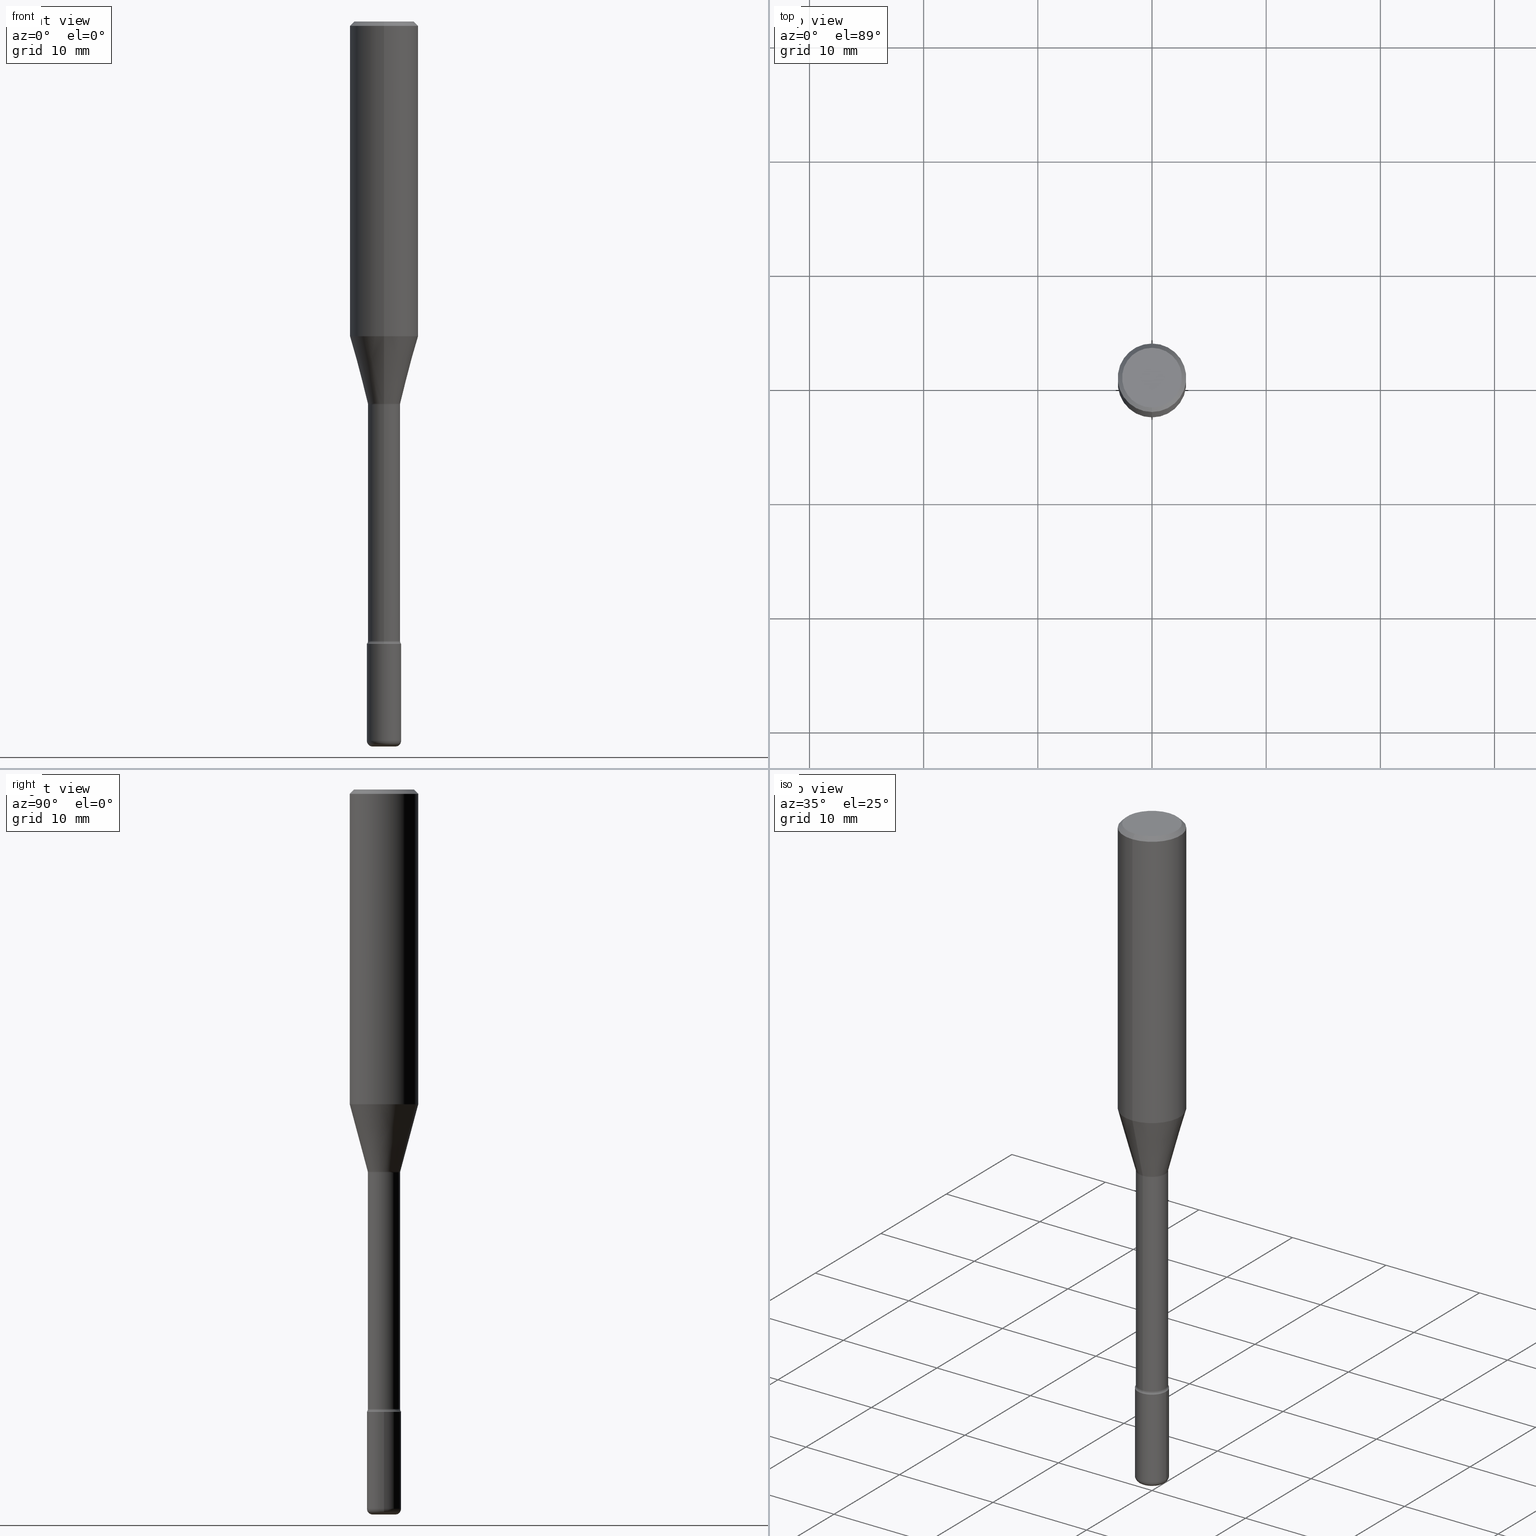
[diagram: canonical four-view strip — front | top / right | iso, engineering-drawing reading convention]
A machine part, canonical four-view strip (front | top / right | iso — engineering-drawing reading convention). The complete STEP part file that produces these views, byte-faithful:
ISO-10303-21;
HEADER;
FILE_DESCRIPTION (( 'STEP AP203' ),
    '1' );
FILE_NAME ('05369.STEP',
    '2024-03-06T20:02:15',
    ( '' ),
    ( '' ),
    'SwSTEP 2.0',
    'SolidWorks 2023',
    '' );
FILE_SCHEMA (( 'CONFIG_CONTROL_DESIGN' ));
ENDSEC;

DATA;
#1 = CIRCLE ( 'NONE', #28, 0.1180999999999999966 ) ;
#2 = PERSON_AND_ORGANIZATION_ROLE ( 'design_supplier' ) ;
#3 = CARTESIAN_POINT ( 'NONE',  ( -8.246878922347479668E-16, -0.1180999999999999966, 8.904434295473012272E-16 ) ) ;
#4 = EDGE_CURVE ( 'NONE', #140, #515, #500, .T. ) ;
#5 = AXIS2_PLACEMENT_3D ( 'NONE', #61, #27, #238 ) ;
#6 = CIRCLE ( 'NONE', #323, 0.1031000000000000111 ) ;
#7 = CARTESIAN_POINT ( 'NONE',  ( -4.123439461173217214E-16, -0.05905000000000752008, -2.145699999999999719 ) ) ;
#8 = ORIENTED_EDGE ( 'NONE', *, *, #509, .F. ) ;
#9 = LINE ( 'NONE', #181, #226 ) ;
#10 = DIRECTION ( 'NONE',  ( 6.982962677686265922E-15, 1.000000000000000000, -3.487819265831411744E-15 ) ) ;
#11 = LOCAL_TIME ( 15, 2, 15.00000000000000000, #160 ) ;
#12 = CIRCLE ( 'NONE', #356, 0.05550000000000008399 ) ;
#13 = DIRECTION ( 'NONE',  ( -2.445314574720221452E-29, 3.491702207079214016E-15, 1.000000000000000000 ) ) ;
#14 = FACE_OUTER_BOUND ( 'NONE', #179, .T. ) ;
#15 = EDGE_CURVE ( 'NONE', #474, #440, #239, .T. ) ;
#16 = FACE_OUTER_BOUND ( 'NONE', #50, .T. ) ;
#17 = ORIENTED_EDGE ( 'NONE', *, *, #286, .T. ) ;
#18 = AXIS2_PLACEMENT_3D ( 'NONE', #410, #502, #237 ) ;
#19 = TOROIDAL_SURFACE ( 'NONE', #501, 0.07050000000000000711, 0.01500000000000001853 ) ;
#20 = CARTESIAN_POINT ( 'NONE',  ( 5.247242417431447608E-29, -7.491671508755737816E-15, -2.145700000000000163 ) ) ;
#21 = EDGE_CURVE ( 'NONE', #136, #329, #30, .T. ) ;
#22 = DIRECTION ( 'NONE',  ( -2.445314574720221172E-29, 3.491702207079214016E-15, 1.000000000000000000 ) ) ;
#23 = DIRECTION ( 'NONE',  ( -6.982962677686265922E-15, -1.000000000000000000, 3.491702207079214016E-15 ) ) ;
#24 = ORIENTED_EDGE ( 'NONE', *, *, #406, .T. ) ;
#25 = DIRECTION ( 'NONE',  ( -2.445314574720221452E-29, 3.491702207079214016E-15, 1.000000000000000000 ) ) ;
#26 = EDGE_CURVE ( 'NONE', #561, #329, #260, .T. ) ;
#27 = DIRECTION ( 'NONE',  ( 7.105427357601001859E-15, 1.000000000000000000, -3.491481338843145583E-15 ) ) ;
#28 = AXIS2_PLACEMENT_3D ( 'NONE', #200, #553, #417 ) ;
#29 = CARTESIAN_POINT ( 'NONE',  ( -1.169113584055446105E-44, 1.669184350826100908E-30, 4.780733988912460139E-16 ) ) ;
#30 = LINE ( 'NONE', #411, #276 ) ;
#31 = CONICAL_SURFACE ( 'NONE', #176, 0.05601111260566399297, 0.2617993877991499629 ) ;
#32 = MECHANICAL_CONTEXT ( 'NONE', #298, 'mechanical' ) ;
#33 = ORIENTED_EDGE ( 'NONE', *, *, #91, .F. ) ;
#34 = APPROVAL_ROLE ( '' ) ;
#35 = CARTESIAN_POINT ( 'NONE',  ( 3.220460959417665931E-29, -4.598545625197397204E-15, -1.316992501787273007 ) ) ;
#36 = ORIENTED_EDGE ( 'NONE', *, *, #495, .F. ) ;
#37 = APPROVAL_ROLE ( '' ) ;
#38 = CARTESIAN_POINT ( 'NONE',  ( 7.723156721521011834E-16, 0.1031000000000000111, -3.887509258146911569E-16 ) ) ;
#39 = CARTESIAN_POINT ( 'NONE',  ( 0.05905000000000008159, -9.072265110850027889E-15, -2.480300000000000171 ) ) ;
#40 = DIRECTION ( 'NONE',  ( 0.000000000000000000, 0.000000000000000000, 1.000000000000000000 ) ) ;
#41 = PLANE ( 'NONE',  #404 ) ;
#42 = CC_DESIGN_DATE_AND_TIME_ASSIGNMENT ( #384, #296, ( #246 ) ) ;
#43 = APPROVAL_PERSON_ORGANIZATION ( #347, #452, #301 ) ;
#44 = CARTESIAN_POINT ( 'NONE',  ( 3.943512183469081661E-16, 0.05549999999999540023, -1.320874787463811373 ) ) ;
#45 = ORIENTED_EDGE ( 'NONE', *, *, #509, .T. ) ;
#46 = ORIENTED_EDGE ( 'NONE', *, *, #393, .F. ) ;
#47 = VECTOR ( 'NONE', #311, 39.37007874015748854 ) ;
#48 = CONICAL_SURFACE ( 'NONE', #270, 0.1180999999999999966, 0.7853981633974480570 ) ;
#49 = CARTESIAN_POINT ( 'NONE',  ( 5.009326287109235352E-16, 0.07049999999999263800, -2.136009927760847305 ) ) ;
#50 = EDGE_LOOP ( 'NONE', ( #294, #17, #305, #313 ) ) ;
#51 = FACE_OUTER_BOUND ( 'NONE', #100, .T. ) ;
#52 = ORIENTED_EDGE ( 'NONE', *, *, #406, .F. ) ;
#53 = CARTESIAN_POINT ( 'NONE',  ( -3.875544286115880904E-16, -0.05550000000000004929, 6.718628713841425539E-16 ) ) ;
#54 = CLOSED_SHELL ( 'NONE', ( #512, #279, #178, #327, #56, #353 ) ) ;
#55 = CARTESIAN_POINT ( 'NONE',  ( -7.587710785535310407E-16, -0.1031000000000000111, 3.312380692850428747E-16 ) ) ;
#56 = ADVANCED_FACE ( 'NONE', ( #466 ), #233, .T. ) ;
#57 = ORIENTED_EDGE ( 'NONE', *, *, #91, .T. ) ;
#58 = DIRECTION ( 'NONE',  ( -1.807323732225328167E-15, -0.2588190451025179084, 0.9659258262890690894 ) ) ;
#59 = DESIGN_CONTEXT ( 'detailed design', #236, 'design' ) ;
#60 = FACE_OUTER_BOUND ( 'NONE', #198, .T. ) ;
#61 = CARTESIAN_POINT ( 'NONE',  ( -0.03935000000000000303, -8.380322598211055940E-15, -2.480300000000000171 ) ) ;
#62 = EDGE_CURVE ( 'NONE', #515, #140, #508, .T. ) ;
#63 = APPROVAL_PERSON_ORGANIZATION ( #388, #210, #34 ) ;
#64 = CARTESIAN_POINT ( 'NONE',  ( 3.230158089619171428E-29, -4.611809671378302064E-15, -1.320874787463810929 ) ) ;
#65 = AXIS2_PLACEMENT_3D ( 'NONE', #511, #168, #302 ) ;
#66 = CYLINDRICAL_SURFACE ( 'NONE', #567, 0.05550000000000004929 ) ;
#67 = EDGE_LOOP ( 'NONE', ( #8, #57, #441, #513 ) ) ;
#68 = ADVANCED_FACE ( 'NONE', ( #326 ), #446, .F. ) ;
#69 = DIRECTION ( 'NONE',  ( -6.982962677686265922E-15, -1.000000000000000000, 4.626330217890369336E-15 ) ) ;
#70 = VERTEX_POINT ( 'NONE', #288 ) ;
#71 = ORIENTED_EDGE ( 'NONE', *, *, #272, .F. ) ;
#72 = DIRECTION ( 'NONE',  ( -2.445314574720221452E-29, 3.491702207079214016E-15, 1.000000000000000000 ) ) ;
#73 = ORIENTED_EDGE ( 'NONE', *, *, #497, .F. ) ;
#74 = CARTESIAN_POINT ( 'NONE',  ( 6.113672015462842613E-29, -8.728703347107866520E-15, -2.500000000000000444 ) ) ;
#75 = DIRECTION ( 'NONE',  ( -2.445468806185136877E-29, 3.491481338843145188E-15, 1.000000000000000000 ) ) ;
#76 = EDGE_CURVE ( 'NONE', #440, #561, #554, .T. ) ;
#77 = CIRCLE ( 'NONE', #380, 0.1180999999999999966 ) ;
#78 = VECTOR ( 'NONE', #144, 39.37007874015748143 ) ;
#79 = COORDINATED_UNIVERSAL_TIME_OFFSET ( 5, 0, .BEHIND. ) ;
#80 = ORIENTED_EDGE ( 'NONE', *, *, #188, .F. ) ;
#81 = FACE_OUTER_BOUND ( 'NONE', #328, .T. ) ;
#82 = APPROVAL ( #431, 'UNSPECIFIED' ) ;
#83 = DATE_AND_TIME ( #438, #142 ) ;
#84 = LINE ( 'NONE', #180, #478 ) ;
#85 = VERTEX_POINT ( 'NONE', #285 ) ;
#86 = ADVANCED_FACE ( 'NONE', ( #461 ), #66, .T. ) ;
#87 = EDGE_LOOP ( 'NONE', ( #422, #415, #202, #218 ) ) ;
#88 = PERSON_AND_ORGANIZATION_ROLE ( 'creator' ) ;
#89 = CARTESIAN_POINT ( 'NONE',  ( 8.246878922347483612E-16, 0.1180999999999999411, -0.01500000000000044006 ) ) ;
#90 = AXIS2_PLACEMENT_3D ( 'NONE', #297, #129, #126 ) ;
#91 = EDGE_CURVE ( 'NONE', #266, #398, #77, .T. ) ;
#92 = DIRECTION ( 'NONE',  ( -2.445314574720221452E-29, 3.491702207079214016E-15, 1.000000000000000000 ) ) ;
#93 = ORIENTED_EDGE ( 'NONE', *, *, #444, .T. ) ;
#94 = CARTESIAN_POINT ( 'NONE',  ( 5.246911482977179404E-29, -7.492145425729869203E-15, -2.145700000000000163 ) ) ;
#95 = ORIENTED_EDGE ( 'NONE', *, *, #4, .F. ) ;
#96 = AXIS2_PLACEMENT_3D ( 'NONE', #249, #472, #69 ) ;
#97 = DIRECTION ( 'NONE',  ( 1.000000000000000000, -6.982962677686266711E-15, 4.876176775795936353E-29 ) ) ;
#98 = EDGE_CURVE ( 'NONE', #187, #528, #454, .T. ) ;
#99 = CARTESIAN_POINT ( 'NONE',  ( 2.747795813670157578E-16, 0.03934999999999127390, -2.500000000000000000 ) ) ;
#100 = EDGE_LOOP ( 'NONE', ( #565, #145 ) ) ;
#101 = DIRECTION ( 'NONE',  ( -6.982962677686265922E-15, -1.000000000000000000, 3.491702207079214016E-15 ) ) ;
#102 = DIRECTION ( 'NONE',  ( -2.445468806185136597E-29, 3.491481338843145583E-15, 1.000000000000000000 ) ) ;
#103 = CIRCLE ( 'NONE', #191, 0.05601111260566399297 ) ;
#104 = VECTOR ( 'NONE', #212, 39.37007874015748143 ) ;
#105 = CC_DESIGN_PERSON_AND_ORGANIZATION_ASSIGNMENT ( #219, #564, ( #460 ) ) ;
#106 = AXIS2_PLACEMENT_3D ( 'NONE', #99, #314, #360 ) ;
#107 = DIRECTION ( 'NONE',  ( -2.445314574720221452E-29, 3.491702207079214016E-15, 1.000000000000000000 ) ) ;
#108 = ORIENTED_EDGE ( 'NONE', *, *, #497, .T. ) ;
#109 = DIRECTION ( 'NONE',  ( -2.445314574720221452E-29, 3.491702207079214016E-15, 1.000000000000000000 ) ) ;
#110 = ORIENTED_EDGE ( 'NONE', *, *, #289, .T. ) ;
#111 = CARTESIAN_POINT ( 'NONE',  ( -0.05904999999999999832, -7.656220851277857871E-15, -2.145700000000000163 ) ) ;
#112 = CARTESIAN_POINT ( 'NONE',  ( -0.05904999999999999832, 4.195754854663391478E-16, -2.904631170795521892E-30 ) ) ;
#113 = DIRECTION ( 'NONE',  ( -6.982962677686265922E-15, -1.000000000000000000, 3.491702207079214411E-15 ) ) ;
#114 = AXIS2_PLACEMENT_3D ( 'NONE', #251, #552, #337 ) ;
#115 = ORIENTED_EDGE ( 'NONE', *, *, #146, .F. ) ;
#116 = ORIENTED_EDGE ( 'NONE', *, *, #194, .T. ) ;
#117 =( CONVERSION_BASED_UNIT ( 'INCH', #334 ) LENGTH_UNIT ( ) NAMED_UNIT ( #261 ) );
#118 = ORIENTED_EDGE ( 'NONE', *, *, #473, .F. ) ;
#119 = CARTESIAN_POINT ( 'NONE',  ( 5.223545648040918700E-29, -7.457838802360693012E-15, -2.136009927760847305 ) ) ;
#120 = VECTOR ( 'NONE', #151, 39.37007874015748143 ) ;
#121 = PERSON_AND_ORGANIZATION_ROLE ( 'design_owner' ) ;
#122 = DIRECTION ( 'NONE',  ( -6.982962677686265922E-15, -1.000000000000000000, 4.877332133888037765E-15 ) ) ;
#123 = AXIS2_PLACEMENT_3D ( 'NONE', #481, #524, #220 ) ;
#124 = AXIS2_PLACEMENT_3D ( 'NONE', #49, #496, #147 ) ;
#125 = ORIENTED_EDGE ( 'NONE', *, *, #130, .F. ) ;
#126 = DIRECTION ( 'NONE',  ( 6.982962677686265922E-15, 1.000000000000000000, -3.491702207079214016E-15 ) ) ;
#127 = ORIENTED_EDGE ( 'NONE', *, *, #538, .F. ) ;
#128 = ORIENTED_EDGE ( 'NONE', *, *, #393, .T. ) ;
#129 = DIRECTION ( 'NONE',  ( 2.445314574720221172E-29, -3.491702207079214016E-15, -1.000000000000000000 ) ) ;
#130 = EDGE_CURVE ( 'NONE', #528, #187, #12, .T. ) ;
#131 = CIRCLE ( 'NONE', #96, 0.05904999999999999832 ) ;
#132 = EDGE_LOOP ( 'NONE', ( #115, #93, #532, #80 ) ) ;
#133 = SHAPE_DEFINITION_REPRESENTATION ( #401, #545 ) ;
#134 = DIRECTION ( 'NONE',  ( -2.445468806185136597E-29, 3.491481338843145583E-15, 1.000000000000000000 ) ) ;
#135 = AXIS2_PLACEMENT_3D ( 'NONE', #201, #335, #205 ) ;
#136 = VERTEX_POINT ( 'NONE', #39 ) ;
#137 = APPROVAL_STATUS ( 'not_yet_approved' ) ;
#138 = LINE ( 'NONE', #3, #104 ) ;
#139 = CARTESIAN_POINT ( 'NONE',  ( -4.922988687768301840E-16, -0.07050000000000755662, -2.136009927760846860 ) ) ;
#140 = VERTEX_POINT ( 'NONE', #44 ) ;
#141 = CARTESIAN_POINT ( 'NONE',  ( 3.667971862080338817E-31, -5.237553310618831452E-17, -0.01500000000000002720 ) ) ;
#142 = LOCAL_TIME ( 15, 2, 15.00000000000000000, #482 ) ;
#143 = CIRCLE ( 'NONE', #520, 0.01970000000000016877 ) ;
#144 = DIRECTION ( 'NONE',  ( -2.445314574720221172E-29, 3.491702207079214016E-15, 1.000000000000000000 ) ) ;
#145 = ORIENTED_EDGE ( 'NONE', *, *, #289, .F. ) ;
#146 = EDGE_CURVE ( 'NONE', #243, #373, #333, .T. ) ;
#147 = DIRECTION ( 'NONE',  ( 7.105427357601001859E-15, 1.000000000000000000, 0.000000000000000000 ) ) ;
#148 = CC_DESIGN_PERSON_AND_ORGANIZATION_ASSIGNMENT ( #262, #121, ( #533 ) ) ;
#149 = DIRECTION ( 'NONE',  ( -6.982962677686265922E-15, -1.000000000000000000, 3.491702207079214016E-15 ) ) ;
#150 = VECTOR ( 'NONE', #166, 39.37007874015748143 ) ;
#151 = DIRECTION ( 'NONE',  ( -2.445314574720221172E-29, 3.491702207079214016E-15, 1.000000000000000000 ) ) ;
#152 = DIRECTION ( 'NONE',  ( 1.000000000000000000, -7.105427357601001070E-15, 4.926318213397865757E-29 ) ) ;
#153 = ORIENTED_EDGE ( 'NONE', *, *, #231, .T. ) ;
#154 = CARTESIAN_POINT ( 'NONE',  ( 2.653835399191132044E-29, -3.789452292305104081E-15, -1.085273619446188720 ) ) ;
#155 = EDGE_LOOP ( 'NONE', ( #24, #556, #416, #541 ) ) ;
#156 = DIRECTION ( 'NONE',  ( -6.982962677686265922E-15, -1.000000000000000000, 3.469747663417777397E-15 ) ) ;
#157 = DIRECTION ( 'NONE',  ( -6.982962677686265922E-15, -1.000000000000000000, 3.469747663417777397E-15 ) ) ;
#158 = FACE_OUTER_BOUND ( 'NONE', #342, .T. ) ;
#159 = DIRECTION ( 'NONE',  ( -2.445468806185136597E-29, 3.491481338843145583E-15, 1.000000000000000000 ) ) ;
#160 = COORDINATED_UNIVERSAL_TIME_OFFSET ( 5, 0, .BEHIND. ) ;
#161 = ORIENTED_EDGE ( 'NONE', *, *, #229, .T. ) ;
#162 = AXIS2_PLACEMENT_3D ( 'NONE', #64, #371, #113 ) ;
#163 = ORIENTED_EDGE ( 'NONE', *, *, #98, .T. ) ;
#164 = AXIS2_PLACEMENT_3D ( 'NONE', #190, #107, #101 ) ;
#165 = APPROVAL_DATE_TIME ( #485, #452 ) ;
#166 = DIRECTION ( 'NONE',  ( 4.937700262164546464E-15, 0.7071067811865449082, -0.7071067811865501263 ) ) ;
#167 = PERSON_AND_ORGANIZATION_ROLE ( 'classification_officer' ) ;
#168 = DIRECTION ( 'NONE',  ( -2.445314574720221452E-29, 3.491702207079214016E-15, 1.000000000000000000 ) ) ;
#169 = ADVANCED_FACE ( 'NONE', ( #488 ), #306, .F. ) ;
#170 = APPROVAL_STATUS ( 'not_yet_approved' ) ;
#171 = DIRECTION ( 'NONE',  ( 1.000000000000000000, -6.982962677686273021E-15, 0.000000000000000000 ) ) ;
#172 = CIRCLE ( 'NONE', #396, 0.03935000000000000303 ) ;
#173 = APPLICATION_PROTOCOL_DEFINITION ( 'international standard', 'config_control_design', 1994, #236 ) ;
#174 = CC_DESIGN_APPROVAL ( #82, ( #213 ) ) ;
#175 = DIRECTION ( 'NONE',  ( -6.982962677686265922E-15, -1.000000000000000000, 4.877332133888037765E-15 ) ) ;
#176 = AXIS2_PLACEMENT_3D ( 'NONE', #386, #483, #175 ) ;
#177 = AXIS2_PLACEMENT_3D ( 'NONE', #183, #102, #363 ) ;
#178 = ADVANCED_FACE ( 'NONE', ( #263 ), #41, .T. ) ;
#179 = EDGE_LOOP ( 'NONE', ( #535, #36, #350, #383 ) ) ;
#180 = CARTESIAN_POINT ( 'NONE',  ( 3.943512183468558548E-16, 0.05550000000000004929, 2.842839263983495232E-16 ) ) ;
#181 = CARTESIAN_POINT ( 'NONE',  ( -8.102248135368174406E-16, -0.1181000000000000522, -0.01499999999999961607 ) ) ;
#182 = EDGE_LOOP ( 'NONE', ( #368, #209, #390, #293 ) ) ;
#183 = CARTESIAN_POINT ( 'NONE',  ( 6.065496279980994755E-29, -8.659921164732655335E-15, -2.480300000000000171 ) ) ;
#184 = EDGE_CURVE ( 'NONE', #398, #85, #138, .T. ) ;
#185 = AXIS2_PLACEMENT_3D ( 'NONE', #20, #159, #372 ) ;
#186 = DIRECTION ( 'NONE',  ( 2.445314574720221452E-29, -3.491702207079214016E-15, -1.000000000000000000 ) ) ;
#187 = VERTEX_POINT ( 'NONE', #259 ) ;
#188 = EDGE_CURVE ( 'NONE', #373, #515, #529, .T. ) ;
#189 = ORIENTED_EDGE ( 'NONE', *, *, #473, .T. ) ;
#190 = CARTESIAN_POINT ( 'NONE',  ( -1.169113584055446105E-44, 1.669184350826100908E-30, 4.780733988912460139E-16 ) ) ;
#191 = AXIS2_PLACEMENT_3D ( 'NONE', #377, #25, #548 ) ;
#192 = DIRECTION ( 'NONE',  ( 7.105427357601001859E-15, 1.000000000000000000, 0.000000000000000000 ) ) ;
#193 = LOCAL_TIME ( 15, 2, 15.00000000000000000, #517 ) ;
#194 = EDGE_CURVE ( 'NONE', #329, #561, #423, .T. ) ;
#195 = CONICAL_SURFACE ( 'NONE', #550, 0.1180999999999999966, 0.7853981633974480570 ) ;
#196 = DIRECTION ( 'NONE',  ( -2.445314574720221452E-29, 3.491702207079214016E-15, 1.000000000000000000 ) ) ;
#197 = ORIENTED_EDGE ( 'NONE', *, *, #26, .T. ) ;
#198 = EDGE_LOOP ( 'NONE', ( #433, #361, #307, #33 ) ) ;
#199 = VERTEX_POINT ( 'NONE', #395 ) ;
#200 = CARTESIAN_POINT ( 'NONE',  ( 3.667971862080338817E-31, -5.237553310618831452E-17, -0.01500000000000002720 ) ) ;
#201 = CARTESIAN_POINT ( 'NONE',  ( 3.229954369165731744E-29, -4.612101410662676179E-15, -1.320874787463810929 ) ) ;
#202 = ORIENTED_EDGE ( 'NONE', *, *, #538, .T. ) ;
#203 = CYLINDRICAL_SURFACE ( 'NONE', #18, 0.05904999999999999832 ) ;
#204 =( GEOMETRIC_REPRESENTATION_CONTEXT ( 3 ) GLOBAL_UNCERTAINTY_ASSIGNED_CONTEXT ( ( #280 ) ) GLOBAL_UNIT_ASSIGNED_CONTEXT ( ( #117, #530, #351 ) ) REPRESENTATION_CONTEXT ( 'NONE', 'WORKASPACE' ) );
#205 = DIRECTION ( 'NONE',  ( -6.982962677686265922E-15, -1.000000000000000000, 4.922248637232905613E-15 ) ) ;
#206 = ADVANCED_FACE ( 'NONE', ( #81 ), #31, .T. ) ;
#207 = CARTESIAN_POINT ( 'NONE',  ( -0.03935000000000000303, -8.344725229926290695E-15, -2.500000000000000444 ) ) ;
#208 = AXIS2_PLACEMENT_3D ( 'NONE', #35, #518, #122 ) ;
#209 = ORIENTED_EDGE ( 'NONE', *, *, #272, .T. ) ;
#210 = APPROVAL ( #170, 'UNSPECIFIED' ) ;
#211 = ORIENTED_EDGE ( 'NONE', *, *, #62, .T. ) ;
#212 = DIRECTION ( 'NONE',  ( -2.445314574720221172E-29, 3.491702207079214016E-15, 1.000000000000000000 ) ) ;
#213 = SECURITY_CLASSIFICATION ( '', '', #344 ) ;
#214 = COORDINATED_UNIVERSAL_TIME_OFFSET ( 5, 0, .BEHIND. ) ;
#215 = CIRCLE ( 'NONE', #539, 0.03935000000000000303 ) ;
#216 = PERSON_AND_ORGANIZATION ( #413, #248 ) ;
#217 = DIRECTION ( 'NONE',  ( 1.000000000000000000, -6.982962677686252511E-15, 4.883557194083107856E-29 ) ) ;
#218 = ORIENTED_EDGE ( 'NONE', *, *, #332, .F. ) ;
#219 = PERSON_AND_ORGANIZATION ( #413, #248 ) ;
#220 = DIRECTION ( 'NONE',  ( 1.000000000000000000, -6.982962677686273021E-15, 0.000000000000000000 ) ) ;
#221 = EDGE_CURVE ( 'NONE', #243, #266, #486, .T. ) ;
#222 = LINE ( 'NONE', #89, #150 ) ;
#223 = EDGE_LOOP ( 'NONE', ( #46, #370, #375, #455 ) ) ;
#224 = TOROIDAL_SURFACE ( 'NONE', #549, 0.03935000000000000303, 0.01970000000000016877 ) ;
#225 = MANIFOLD_SOLID_BREP ( 'Body-Move/Copy2[1]', #54 ) ;
#226 = VECTOR ( 'NONE', #362, 39.37007874015748143 ) ;
#227 = ORIENTED_EDGE ( 'NONE', *, *, #229, .F. ) ;
#228 = LINE ( 'NONE', #53, #78 ) ;
#229 = EDGE_CURVE ( 'NONE', #493, #136, #143, .T. ) ;
#230 = CARTESIAN_POINT ( 'NONE',  ( -8.246878922347212441E-16, -0.1181000000000037714, -1.085273619446188276 ) ) ;
#231 = EDGE_CURVE ( 'NONE', #254, #199, #277, .T. ) ;
#232 = CYLINDRICAL_SURFACE ( 'NONE', #477, 0.1180999999999999966 ) ;
#233 = TOROIDAL_SURFACE ( 'NONE', #114, 0.03935000000000000303, 0.01970000000000016877 ) ;
#234 = CYLINDRICAL_SURFACE ( 'NONE', #448, 0.05904999999999999832 ) ;
#235 = FACE_OUTER_BOUND ( 'NONE', #67, .T. ) ;
#236 = APPLICATION_CONTEXT ( 'configuration controlled 3d designs of mechanical parts and assemblies' ) ;
#237 = DIRECTION ( 'NONE',  ( 1.000000000000000000, -6.982962677686266711E-15, 4.876176775795936353E-29 ) ) ;
#238 = DIRECTION ( 'NONE',  ( -1.000000000000000000, 7.105427357601014480E-15, 0.000000000000000000 ) ) ;
#239 = CIRCLE ( 'NONE', #5, 0.01970000000000016877 ) ;
#240 = LINE ( 'NONE', #468, #120 ) ;
#241 = CARTESIAN_POINT ( 'NONE',  ( -1.169113584055446105E-44, 1.669184350826100908E-30, 4.780733988912460139E-16 ) ) ;
#242 = EDGE_CURVE ( 'NONE', #264, #70, #222, .T. ) ;
#243 = VERTEX_POINT ( 'NONE', #436 ) ;
#244 = DIRECTION ( 'NONE',  ( -6.982962677686265922E-15, -1.000000000000000000, 3.491702207079213622E-15 ) ) ;
#245 = AXIS2_PLACEMENT_3D ( 'NONE', #503, #152, #192 ) ;
#246 = PRODUCT_DEFINITION ( 'UNKNOWN', '', #460, #59 ) ;
#247 = EDGE_LOOP ( 'NONE', ( #189, #45, #430, #359 ) ) ;
#248 = ORGANIZATION ( 'UNSPECIFIED', 'UNSPECIFIED', '' ) ;
#249 = CARTESIAN_POINT ( 'NONE',  ( 5.246911482977179404E-29, -7.492145425729869203E-15, -2.145700000000000163 ) ) ;
#250 = CIRCLE ( 'NONE', #369, 0.01500000000000001853 ) ;
#251 = CARTESIAN_POINT ( 'NONE',  ( 6.065496279980994755E-29, -8.659921164732655335E-15, -2.480300000000000171 ) ) ;
#252 = DATE_AND_TIME ( #480, #193 ) ;
#253 = DIRECTION ( 'NONE',  ( -6.982962677686266711E-15, -1.000000000000000000, 3.491481338843145583E-15 ) ) ;
#254 = VERTEX_POINT ( 'NONE', #7 ) ;
#255 = PERSON_AND_ORGANIZATION ( #413, #248 ) ;
#256 = DIRECTION ( 'NONE',  ( -2.445314574720221172E-29, 3.491702207079214016E-15, 1.000000000000000000 ) ) ;
#257 = ORIENTED_EDGE ( 'NONE', *, *, #365, .T. ) ;
#258 = LOCAL_TIME ( 15, 2, 15.00000000000000000, #79 ) ;
#259 = CARTESIAN_POINT ( 'NONE',  ( 4.069633519066500838E-16, 0.05549999999999261774, -2.136009927760847749 ) ) ;
#260 = CIRCLE ( 'NONE', #185, 0.05904999999999999832 ) ;
#261 = DIMENSIONAL_EXPONENTS ( 1.000000000000000000, 0.000000000000000000, 0.000000000000000000, 0.000000000000000000, 0.000000000000000000, 0.000000000000000000, 0.000000000000000000 ) ;
#262 = PERSON_AND_ORGANIZATION ( #413, #248 ) ;
#263 = FACE_OUTER_BOUND ( 'NONE', #267, .T. ) ;
#264 = VERTEX_POINT ( 'NONE', #38 ) ;
#265 = DIRECTION ( 'NONE',  ( -6.982962677686265922E-15, -1.000000000000000000, 4.626330217890369336E-15 ) ) ;
#266 = VERTEX_POINT ( 'NONE', #346 ) ;
#267 = EDGE_LOOP ( 'NONE', ( #116, #197 ) ) ;
#268 = CARTESIAN_POINT ( 'NONE',  ( 3.230158089619171428E-29, -4.611809671378302064E-15, -1.320874787463810929 ) ) ;
#269 = CIRCLE ( 'NONE', #343, 0.05904999999999999832 ) ;
#270 = AXIS2_PLACEMENT_3D ( 'NONE', #400, #186, #10 ) ;
#271 = DIRECTION ( 'NONE',  ( 6.982962677686265922E-15, 1.000000000000000000, -3.487819265831411744E-15 ) ) ;
#272 = EDGE_CURVE ( 'NONE', #187, #140, #84, .T. ) ;
#273 = LINE ( 'NONE', #456, #319 ) ;
#274 = CIRCLE ( 'NONE', #420, 0.1180999999999999966 ) ;
#275 = DIRECTION ( 'NONE',  ( -2.445314574720221452E-29, 3.491702207079214016E-15, 1.000000000000000000 ) ) ;
#276 = VECTOR ( 'NONE', #75, 39.37007874015748143 ) ;
#277 = CIRCLE ( 'NONE', #322, 0.05904999999999999832 ) ;
#278 = CYLINDRICAL_SURFACE ( 'NONE', #164, 0.05550000000000004929 ) ;
#279 = ADVANCED_FACE ( 'NONE', ( #432 ), #224, .T. ) ;
#280 = UNCERTAINTY_MEASURE_WITH_UNIT (LENGTH_MEASURE( 1.000000000000000082E-05 ), #117, 'distance_accuracy_value', 'NONE');
#281 = DIRECTION ( 'NONE',  ( 1.000000000000000000, -6.982962677686269077E-15, 0.000000000000000000 ) ) ;
#282 = ORIENTED_EDGE ( 'NONE', *, *, #338, .F. ) ;
#283 = CC_DESIGN_PERSON_AND_ORGANIZATION_ASSIGNMENT ( #521, #167, ( #213 ) ) ;
#284 = PLANE ( 'NONE',  #537 ) ;
#285 = CARTESIAN_POINT ( 'NONE',  ( -8.246878922347475723E-16, -0.1181000000000000522, -0.01499999999999961607 ) ) ;
#286 = EDGE_CURVE ( 'NONE', #440, #136, #269, .T. ) ;
#287 = CARTESIAN_POINT ( 'NONE',  ( 3.667971862080338817E-31, -5.237553310618831452E-17, -0.01500000000000002720 ) ) ;
#288 = CARTESIAN_POINT ( 'NONE',  ( 8.391509709327049197E-16, 0.1180999999999999411, -0.01500000000000044006 ) ) ;
#289 = EDGE_CURVE ( 'NONE', #474, #493, #215, .T. ) ;
#290 = ORIENTED_EDGE ( 'NONE', *, *, #450, .T. ) ;
#291 = DIRECTION ( 'NONE',  ( -2.445314574720221452E-29, 3.491702207079214016E-15, 1.000000000000000000 ) ) ;
#292 = VERTEX_POINT ( 'NONE', #55 ) ;
#293 = ORIENTED_EDGE ( 'NONE', *, *, #365, .F. ) ;
#294 = ORIENTED_EDGE ( 'NONE', *, *, #76, .F. ) ;
#295 = CLOSED_SHELL ( 'NONE', ( #304, #86, #349, #382, #572, #206, #527, #434, #403, #169, #563, #68, #412, #542 ) ) ;
#296 = DATE_TIME_ROLE ( 'creation_date' ) ;
#297 = CARTESIAN_POINT ( 'NONE',  ( 7.199434520694541042E-16, 0.1031000000000000111, -1.353360122366559931E-16 ) ) ;
#298 = APPLICATION_CONTEXT ( 'configuration controlled 3d designs of mechanical parts and assemblies' ) ;
#299 = CARTESIAN_POINT ( 'NONE',  ( 0.000000000000000000, 0.000000000000000000, 0.000000000000000000 ) ) ;
#300 = DIRECTION ( 'NONE',  ( -1.000000000000000000, 6.982962677686265922E-15, -4.883557194083112340E-29 ) ) ;
#301 = APPROVAL_ROLE ( '' ) ;
#302 = DIRECTION ( 'NONE',  ( -6.982962677686265922E-15, -1.000000000000000000, 4.922248637232899302E-15 ) ) ;
#303 = AXIS2_PLACEMENT_3D ( 'NONE', #154, #291, #156 ) ;
#304 = ADVANCED_FACE ( 'NONE', ( #447 ), #19, .F. ) ;
#305 = ORIENTED_EDGE ( 'NONE', *, *, #21, .T. ) ;
#306 = PLANE ( 'NONE',  #90 ) ;
#307 = ORIENTED_EDGE ( 'NONE', *, *, #429, .T. ) ;
#308 = ORIENTED_EDGE ( 'NONE', *, *, #15, .F. ) ;
#309 = CC_DESIGN_PERSON_AND_ORGANIZATION_ASSIGNMENT ( #339, #88, ( #246 ) ) ;
#310 = CALENDAR_DATE ( 2024, 6, 3 ) ;
#311 = DIRECTION ( 'NONE',  ( 1.839019923739597949E-15, 0.2588190451025246253, 0.9659258262890670910 ) ) ;
#312 = CARTESIAN_POINT ( 'NONE',  ( 5.223545648040918700E-29, -7.457838802360693012E-15, -2.136009927760847305 ) ) ;
#313 = ORIENTED_EDGE ( 'NONE', *, *, #26, .F. ) ;
#314 = DIRECTION ( 'NONE',  ( 2.438088387897960049E-29, -3.491481338843145188E-15, -1.000000000000000000 ) ) ;
#315 = VECTOR ( 'NONE', #378, 39.37007874015748143 ) ;
#316 = FACE_OUTER_BOUND ( 'NONE', #463, .T. ) ;
#317 = ORIENTED_EDGE ( 'NONE', *, *, #444, .F. ) ;
#318 = DIRECTION ( 'NONE',  ( -6.982962677686265922E-15, -1.000000000000000000, 3.491702207079213622E-15 ) ) ;
#319 = VECTOR ( 'NONE', #58, 39.37007874015748143 ) ;
#320 = DIRECTION ( 'NONE',  ( -6.982962677686272233E-15, -1.000000000000000000, 0.000000000000000000 ) ) ;
#321 = LOCAL_TIME ( 15, 2, 15.00000000000000000, #214 ) ;
#322 = AXIS2_PLACEMENT_3D ( 'NONE', #94, #352, #265 ) ;
#323 = AXIS2_PLACEMENT_3D ( 'NONE', #449, #275, #149 ) ;
#324 = FACE_OUTER_BOUND ( 'NONE', #155, .T. ) ;
#325 = FACE_OUTER_BOUND ( 'NONE', #366, .T. ) ;
#326 = FACE_OUTER_BOUND ( 'NONE', #516, .T. ) ;
#327 = ADVANCED_FACE ( 'NONE', ( #51 ), #540, .T. ) ;
#328 = EDGE_LOOP ( 'NONE', ( #108, #443, #118, #569 ) ) ;
#329 = VERTEX_POINT ( 'NONE', #534 ) ;
#330 = CARTESIAN_POINT ( 'NONE',  ( -0.05905000000000008159, -8.240345679266315842E-15, -2.480300000000000171 ) ) ;
#331 = DIRECTION ( 'NONE',  ( -2.445314574720221452E-29, 3.491702207079214016E-15, 1.000000000000000000 ) ) ;
#332 = EDGE_CURVE ( 'NONE', #528, #254, #250, .T. ) ;
#333 = CIRCLE ( 'NONE', #208, 0.05601111260566399297 ) ;
#334 = LENGTH_MEASURE_WITH_UNIT ( LENGTH_MEASURE( 0.02539999999999999897 ), #514 );
#335 = DIRECTION ( 'NONE',  ( -2.445314574720221452E-29, 3.491702207079214016E-15, 1.000000000000000000 ) ) ;
#336 = CARTESIAN_POINT ( 'NONE',  ( 0.03935000000000000303, -9.003482928474821437E-15, -2.500000000000000444 ) ) ;
#337 = DIRECTION ( 'NONE',  ( 1.000000000000000000, -6.982962677686252511E-15, 4.883557194083107856E-29 ) ) ;
#338 = EDGE_CURVE ( 'NONE', #187, #199, #345, .T. ) ;
#339 = PERSON_AND_ORGANIZATION ( #413, #248 ) ;
#340 = AXIS2_PLACEMENT_3D ( 'NONE', #457, #72, #506 ) ;
#341 = AXIS2_PLACEMENT_3D ( 'NONE', #299, #40, #394 ) ;
#342 = EDGE_LOOP ( 'NONE', ( #490, #127 ) ) ;
#343 = AXIS2_PLACEMENT_3D ( 'NONE', #571, #389, #171 ) ;
#344 = SECURITY_CLASSIFICATION_LEVEL ( 'unclassified' ) ;
#345 = CIRCLE ( 'NONE', #124, 0.01500000000000001853 ) ;
#346 = CARTESIAN_POINT ( 'NONE',  ( 8.391509709327049197E-16, 0.1180999999999962358, -1.085273619446189164 ) ) ;
#347 = PERSON_AND_ORGANIZATION ( #413, #248 ) ;
#348 = DIRECTION ( 'NONE',  ( -2.445468806185136597E-29, 3.491481338843145583E-15, 1.000000000000000000 ) ) ;
#349 = ADVANCED_FACE ( 'NONE', ( #451 ), #358, .F. ) ;
#350 = ORIENTED_EDGE ( 'NONE', *, *, #242, .T. ) ;
#351 =( NAMED_UNIT ( * ) SI_UNIT ( $, .STERADIAN. ) SOLID_ANGLE_UNIT ( ) );
#352 = DIRECTION ( 'NONE',  ( -2.445314574720221452E-29, 3.491702207079214016E-15, 1.000000000000000000 ) ) ;
#353 = ADVANCED_FACE ( 'NONE', ( #16 ), #234, .T. ) ;
#354 = CC_DESIGN_SECURITY_CLASSIFICATION ( #213, ( #460 ) ) ;
#355 = DATE_TIME_ROLE ( 'classification_date' ) ;
#356 = AXIS2_PLACEMENT_3D ( 'NONE', #442, #92, #522 ) ;
#357 = DIRECTION ( 'NONE',  ( 1.000000000000000000, -6.982962677686265922E-15, 4.876176775795935793E-29 ) ) ;
#358 = TOROIDAL_SURFACE ( 'NONE', #479, 0.07050000000000010425, 0.01500000000000002373 ) ;
#359 = ORIENTED_EDGE ( 'NONE', *, *, #184, .F. ) ;
#360 = DIRECTION ( 'NONE',  ( -1.000000000000000000, 6.982962677686265922E-15, -4.876176775795935793E-29 ) ) ;
#361 = ORIENTED_EDGE ( 'NONE', *, *, #146, .T. ) ;
#362 = DIRECTION ( 'NONE',  ( -4.851104656540962697E-15, -0.7071067811865497932, -0.7071067811865452413 ) ) ;
#363 = DIRECTION ( 'NONE',  ( 1.000000000000000000, -6.982962677686273021E-15, 0.000000000000000000 ) ) ;
#364 = DIRECTION ( 'NONE',  ( -6.982962677686265922E-15, -1.000000000000000000, 3.491702207079213622E-15 ) ) ;
#365 = EDGE_CURVE ( 'NONE', #528, #515, #228, .T. ) ;
#366 = EDGE_LOOP ( 'NONE', ( #317, #73, #505, #211 ) ) ;
#367 = CARTESIAN_POINT ( 'NONE',  ( 7.024477919222300476E-46, -1.005144752683258765E-31, -2.875642826482414108E-17 ) ) ;
#368 = ORIENTED_EDGE ( 'NONE', *, *, #130, .T. ) ;
#369 = AXIS2_PLACEMENT_3D ( 'NONE', #139, #399, #320 ) ;
#370 = ORIENTED_EDGE ( 'NONE', *, *, #374, .T. ) ;
#371 = DIRECTION ( 'NONE',  ( -2.445314574720221452E-29, 3.491702207079214016E-15, 1.000000000000000000 ) ) ;
#372 = DIRECTION ( 'NONE',  ( 1.000000000000000000, -6.982962677686273021E-15, 0.000000000000000000 ) ) ;
#373 = VERTEX_POINT ( 'NONE', #498 ) ;
#374 = EDGE_CURVE ( 'NONE', #292, #85, #9, .T. ) ;
#375 = ORIENTED_EDGE ( 'NONE', *, *, #559, .T. ) ;
#376 = CONICAL_SURFACE ( 'NONE', #340, 0.05601111260566399297, 0.2617993877991499629 ) ;
#377 = CARTESIAN_POINT ( 'NONE',  ( 3.220460959417665931E-29, -4.598545625197397204E-15, -1.316992501787273007 ) ) ;
#378 = DIRECTION ( 'NONE',  ( -2.445468806185136877E-29, 3.491481338843145188E-15, 1.000000000000000000 ) ) ;
#379 = PRODUCT_RELATED_PRODUCT_CATEGORY ( 'detail', '', ( #533 ) ) ;
#380 = AXIS2_PLACEMENT_3D ( 'NONE', #507, #558, #157 ) ;
#381 = DIRECTION ( 'NONE',  ( -6.982962677686265922E-15, -1.000000000000000000, 3.491702207079214016E-15 ) ) ;
#382 = ADVANCED_FACE ( 'NONE', ( #536 ), #195, .T. ) ;
#383 = ORIENTED_EDGE ( 'NONE', *, *, #467, .T. ) ;
#384 = DATE_AND_TIME ( #435, #258 ) ;
#385 = AXIS2_PLACEMENT_3D ( 'NONE', #29, #465, #244 ) ;
#386 = CARTESIAN_POINT ( 'NONE',  ( 3.220460959417665931E-29, -4.598545625197397204E-15, -1.316992501787273007 ) ) ;
#387 = AXIS2_PLACEMENT_3D ( 'NONE', #439, #300, #397 ) ;
#388 = PERSON_AND_ORGANIZATION ( #413, #248 ) ;
#389 = DIRECTION ( 'NONE',  ( -2.445468806185136597E-29, 3.491481338843145583E-15, 1.000000000000000000 ) ) ;
#390 = ORIENTED_EDGE ( 'NONE', *, *, #62, .F. ) ;
#391 = CALENDAR_DATE ( 2024, 6, 3 ) ;
#392 = CARTESIAN_POINT ( 'NONE',  ( 5.247242417431447608E-29, -7.491671508755737816E-15, -2.145700000000000163 ) ) ;
#393 = EDGE_CURVE ( 'NONE', #292, #264, #6, .T. ) ;
#394 = DIRECTION ( 'NONE',  ( 1.000000000000000000, 0.000000000000000000, 0.000000000000000000 ) ) ;
#395 = CARTESIAN_POINT ( 'NONE',  ( 4.195754854663917550E-16, 0.05904999999999253207, -2.145700000000000163 ) ) ;
#396 = AXIS2_PLACEMENT_3D ( 'NONE', #74, #560, #281 ) ;
#397 = DIRECTION ( 'NONE',  ( -6.982962677686270655E-15, -1.000000000000000000, 0.000000000000000000 ) ) ;
#398 = VERTEX_POINT ( 'NONE', #230 ) ;
#399 = DIRECTION ( 'NONE',  ( -1.000000000000000000, 6.982962677686265922E-15, -4.883557194083112340E-29 ) ) ;
#400 = CARTESIAN_POINT ( 'NONE',  ( 3.667971862080338817E-31, -5.237553310618831452E-17, -0.01500000000000002720 ) ) ;
#401 = PRODUCT_DEFINITION_SHAPE ( 'NONE', 'NONE',  #246 ) ;
#402 = CARTESIAN_POINT ( 'NONE',  ( -1.169113584055446105E-44, 1.669184350826100908E-30, 4.780733988912460139E-16 ) ) ;
#403 = ADVANCED_FACE ( 'NONE', ( #14 ), #48, .T. ) ;
#404 = AXIS2_PLACEMENT_3D ( 'NONE', #392, #531, #357 ) ;
#405 = DIRECTION ( 'NONE',  ( -2.445468806185136597E-29, 3.491481338843145583E-15, 1.000000000000000000 ) ) ;
#406 = EDGE_CURVE ( 'NONE', #136, #440, #424, .T. ) ;
#407 = DIRECTION ( 'NONE',  ( -2.445314574720221452E-29, 3.491702207079214016E-15, 1.000000000000000000 ) ) ;
#408 = MANIFOLD_SOLID_BREP ( 'Body-Move/Copy2[2]', #295 ) ;
#409 = TOROIDAL_SURFACE ( 'NONE', #162, 0.07050000000000000711, 0.01500000000000001853 ) ;
#410 = CARTESIAN_POINT ( 'NONE',  ( 0.000000000000000000, 0.000000000000000000, 0.000000000000000000 ) ) ;
#411 = CARTESIAN_POINT ( 'NONE',  ( 0.05904999999999999832, -4.123439461173740327E-16, 2.879382386107500220E-30 ) ) ;
#412 = ADVANCED_FACE ( 'NONE', ( #316 ), #278, .T. ) ;
#413 = PERSON ( 'UNSPECIFIED', 'UNSPECIFIED', 'UNSPECIFIED', ('UNSPECIFIED'), ('UNSPECIFIED'), ('UNSPECIFIED') ) ;
#414 = FACE_OUTER_BOUND ( 'NONE', #247, .T. ) ;
#415 = ORIENTED_EDGE ( 'NONE', *, *, #338, .T. ) ;
#416 = ORIENTED_EDGE ( 'NONE', *, *, #194, .F. ) ;
#417 = DIRECTION ( 'NONE',  ( -6.982962677686265922E-15, -1.000000000000000000, 3.487819265831411744E-15 ) ) ;
#418 = CARTESIAN_POINT ( 'NONE',  ( 3.229954369165731744E-29, -4.612101410662676179E-15, -1.320874787463810929 ) ) ;
#419 = ORIENTED_EDGE ( 'NONE', *, *, #495, .T. ) ;
#420 = AXIS2_PLACEMENT_3D ( 'NONE', #287, #109, #551 ) ;
#421 = CYLINDRICAL_SURFACE ( 'NONE', #385, 0.1180999999999999966 ) ;
#422 = ORIENTED_EDGE ( 'NONE', *, *, #98, .F. ) ;
#423 = CIRCLE ( 'NONE', #123, 0.05904999999999999832 ) ;
#424 = CIRCLE ( 'NONE', #177, 0.05904999999999999832 ) ;
#425 = CARTESIAN_POINT ( 'NONE',  ( -3.875544286115360749E-16, -0.05550000000000754330, -2.136009927760847305 ) ) ;
#426 = DIRECTION ( 'NONE',  ( -2.445314574720221452E-29, 3.491702207079214016E-15, 1.000000000000000000 ) ) ;
#427 = APPROVAL_DATE_TIME ( #252, #210 ) ;
#428 = DIRECTION ( 'NONE',  ( 1.000000000000000000, -6.982962677686268288E-15, 0.000000000000000000 ) ) ;
#429 = EDGE_CURVE ( 'NONE', #373, #398, #273, .T. ) ;
#430 = ORIENTED_EDGE ( 'NONE', *, *, #559, .F. ) ;
#431 = APPROVAL_STATUS ( 'not_yet_approved' ) ;
#432 = FACE_OUTER_BOUND ( 'NONE', #484, .T. ) ;
#433 = ORIENTED_EDGE ( 'NONE', *, *, #221, .F. ) ;
#434 = ADVANCED_FACE ( 'NONE', ( #235 ), #232, .T. ) ;
#435 = CALENDAR_DATE ( 2024, 6, 3 ) ;
#436 = CARTESIAN_POINT ( 'NONE',  ( 6.185669313853460208E-16, 0.05601111260565939248, -1.316992501787273229 ) ) ;
#437 = ORIENTED_EDGE ( 'NONE', *, *, #15, .T. ) ;
#438 = CALENDAR_DATE ( 2024, 6, 3 ) ;
#439 = CARTESIAN_POINT ( 'NONE',  ( -4.922988687768494125E-16, -0.07050000000000461453, -1.320874787463810707 ) ) ;
#440 = VERTEX_POINT ( 'NONE', #330 ) ;
#441 = ORIENTED_EDGE ( 'NONE', *, *, #184, .T. ) ;
#442 = CARTESIAN_POINT ( 'NONE',  ( 5.223216208100687058E-29, -7.458310579105662270E-15, -2.136009927760847305 ) ) ;
#443 = ORIENTED_EDGE ( 'NONE', *, *, #221, .T. ) ;
#444 = EDGE_CURVE ( 'NONE', #243, #140, #475, .T. ) ;
#445 = ORIENTED_EDGE ( 'NONE', *, *, #332, .T. ) ;
#446 = TOROIDAL_SURFACE ( 'NONE', #462, 0.07050000000000010425, 0.01500000000000002373 ) ;
#447 = FACE_OUTER_BOUND ( 'NONE', #132, .T. ) ;
#448 = AXIS2_PLACEMENT_3D ( 'NONE', #492, #405, #97 ) ;
#449 = CARTESIAN_POINT ( 'NONE',  ( 7.024477919222300476E-46, -1.005144752683258765E-31, -2.875642826482414108E-17 ) ) ;
#450 = EDGE_CURVE ( 'NONE', #493, #474, #172, .T. ) ;
#451 = FACE_OUTER_BOUND ( 'NONE', #87, .T. ) ;
#452 = APPROVAL ( #137, 'UNSPECIFIED' ) ;
#453 = DIRECTION ( 'NONE',  ( 1.000000000000000000, -6.982962677686269077E-15, 0.000000000000000000 ) ) ;
#454 = CIRCLE ( 'NONE', #65, 0.05550000000000008399 ) ;
#455 = ORIENTED_EDGE ( 'NONE', *, *, #242, .F. ) ;
#456 = CARTESIAN_POINT ( 'NONE',  ( -3.911235088610021883E-16, -0.05601111260566859346, -1.316992501787272785 ) ) ;
#457 = CARTESIAN_POINT ( 'NONE',  ( 3.220460959417665931E-29, -4.598545625197397204E-15, -1.316992501787273007 ) ) ;
#458 = DIRECTION ( 'NONE',  ( -6.982962677686265922E-15, -1.000000000000000000, 4.922248637232905613E-15 ) ) ;
#459 = CARTESIAN_POINT ( 'NONE',  ( 4.123439461174264426E-16, 0.05904999999999250432, -2.145700000000000163 ) ) ;
#460 = PRODUCT_DEFINITION_FORMATION_WITH_SPECIFIED_SOURCE ( 'ANY', '', #533, .NOT_KNOWN. ) ;
#461 = FACE_OUTER_BOUND ( 'NONE', #182, .T. ) ;
#462 = AXIS2_PLACEMENT_3D ( 'NONE', #119, #426, #504 ) ;
#463 = EDGE_LOOP ( 'NONE', ( #71, #163, #257, #95 ) ) ;
#464 = CC_DESIGN_PERSON_AND_ORGANIZATION_ASSIGNMENT ( #216, #2, ( #460 ) ) ;
#465 = DIRECTION ( 'NONE',  ( -2.445314574720221452E-29, 3.491702207079214016E-15, 1.000000000000000000 ) ) ;
#466 = FACE_OUTER_BOUND ( 'NONE', #562, .T. ) ;
#467 = EDGE_CURVE ( 'NONE', #70, #85, #1, .T. ) ;
#468 = CARTESIAN_POINT ( 'NONE',  ( 8.391509709326781971E-16, 0.1180999999999999966, 6.570336823519088696E-17 ) ) ;
#469 = DIRECTION ( 'NONE',  ( -2.445314574720221452E-29, 3.491702207079214016E-15, 1.000000000000000000 ) ) ;
#470 = EDGE_LOOP ( 'NONE', ( #419, #128 ) ) ;
#471 = AXIS2_PLACEMENT_3D ( 'NONE', #367, #196, #557 ) ;
#472 = DIRECTION ( 'NONE',  ( -2.445314574720221452E-29, 3.491702207079214016E-15, 1.000000000000000000 ) ) ;
#473 = EDGE_CURVE ( 'NONE', #398, #266, #555, .T. ) ;
#474 = VERTEX_POINT ( 'NONE', #207 ) ;
#475 = CIRCLE ( 'NONE', #245, 0.01500000000000001159 ) ;
#476 = CC_DESIGN_APPROVAL ( #452, ( #246 ) ) ;
#477 = AXIS2_PLACEMENT_3D ( 'NONE', #402, #13, #364 ) ;
#478 = VECTOR ( 'NONE', #256, 39.37007874015748143 ) ;
#479 = AXIS2_PLACEMENT_3D ( 'NONE', #312, #546, #318 ) ;
#480 = CALENDAR_DATE ( 2024, 6, 3 ) ;
#481 = CARTESIAN_POINT ( 'NONE',  ( 5.247242417431447608E-29, -7.491671508755737816E-15, -2.145700000000000163 ) ) ;
#482 = COORDINATED_UNIVERSAL_TIME_OFFSET ( 5, 0, .BEHIND. ) ;
#483 = DIRECTION ( 'NONE',  ( -2.445314574720221452E-29, 3.491702207079214016E-15, 1.000000000000000000 ) ) ;
#484 = EDGE_LOOP ( 'NONE', ( #290, #437, #52, #227 ) ) ;
#485 = DATE_AND_TIME ( #310, #11 ) ;
#486 = LINE ( 'NONE', #566, #47 ) ;
#487 = AXIS2_PLACEMENT_3D ( 'NONE', #418, #469, #458 ) ;
#488 = FACE_OUTER_BOUND ( 'NONE', #470, .T. ) ;
#489 = CARTESIAN_POINT ( 'NONE',  ( 0.03935000000000000303, -8.934700746099608675E-15, -2.480300000000000171 ) ) ;
#490 = ORIENTED_EDGE ( 'NONE', *, *, #231, .F. ) ;
#491 = ORIENTED_EDGE ( 'NONE', *, *, #286, .F. ) ;
#492 = CARTESIAN_POINT ( 'NONE',  ( 0.000000000000000000, 0.000000000000000000, 0.000000000000000000 ) ) ;
#493 = VERTEX_POINT ( 'NONE', #336 ) ;
#494 = DIRECTION ( 'NONE',  ( 2.445314574720221452E-29, -3.491702207079214016E-15, -1.000000000000000000 ) ) ;
#495 = EDGE_CURVE ( 'NONE', #264, #292, #547, .T. ) ;
#496 = DIRECTION ( 'NONE',  ( 1.000000000000000000, -7.105427357601001070E-15, 4.926318213397865757E-29 ) ) ;
#497 = EDGE_CURVE ( 'NONE', #373, #243, #103, .T. ) ;
#498 = CARTESIAN_POINT ( 'NONE',  ( -3.911235088610021883E-16, -0.05601111260566859346, -1.316992501787272785 ) ) ;
#499 = APPROVAL_PERSON_ORGANIZATION ( #255, #82, #37 ) ;
#500 = CIRCLE ( 'NONE', #487, 0.05550000000000001460 ) ;
#501 = AXIS2_PLACEMENT_3D ( 'NONE', #268, #407, #543 ) ;
#502 = DIRECTION ( 'NONE',  ( -2.445468806185136597E-29, 3.491481338843145583E-15, 1.000000000000000000 ) ) ;
#503 = CARTESIAN_POINT ( 'NONE',  ( 5.009326287109029262E-16, 0.07049999999999539968, -1.320874787463811373 ) ) ;
#504 = DIRECTION ( 'NONE',  ( -6.982962677686265922E-15, -1.000000000000000000, 3.491702207079213622E-15 ) ) ;
#505 = ORIENTED_EDGE ( 'NONE', *, *, #188, .T. ) ;
#506 = DIRECTION ( 'NONE',  ( -6.982962677686265922E-15, -1.000000000000000000, 4.877332133888037765E-15 ) ) ;
#507 = CARTESIAN_POINT ( 'NONE',  ( 2.653835399191132044E-29, -3.789452292305104081E-15, -1.085273619446188720 ) ) ;
#508 = CIRCLE ( 'NONE', #135, 0.05550000000000001460 ) ;
#509 = EDGE_CURVE ( 'NONE', #266, #70, #240, .T. ) ;
#510 = CARTESIAN_POINT ( 'NONE',  ( -3.875544286115555499E-16, -0.05550000000000462202, -1.320874787463810707 ) ) ;
#511 = CARTESIAN_POINT ( 'NONE',  ( 5.223216208100687058E-29, -7.458310579105662270E-15, -2.136009927760847305 ) ) ;
#512 = ADVANCED_FACE ( 'NONE', ( #324 ), #203, .T. ) ;
#513 = ORIENTED_EDGE ( 'NONE', *, *, #467, .F. ) ;
#514 =( LENGTH_UNIT ( ) NAMED_UNIT ( * ) SI_UNIT ( $, .METRE. ) );
#515 = VERTEX_POINT ( 'NONE', #510 ) ;
#516 = EDGE_LOOP ( 'NONE', ( #282, #125, #445, #153 ) ) ;
#517 = COORDINATED_UNIVERSAL_TIME_OFFSET ( 5, 0, .BEHIND. ) ;
#518 = DIRECTION ( 'NONE',  ( -2.445314574720221452E-29, 3.491702207079214016E-15, 1.000000000000000000 ) ) ;
#519 = CC_DESIGN_APPROVAL ( #210, ( #460 ) ) ;
#520 = AXIS2_PLACEMENT_3D ( 'NONE', #489, #253, #428 ) ;
#521 = PERSON_AND_ORGANIZATION ( #413, #248 ) ;
#522 = DIRECTION ( 'NONE',  ( -6.982962677686265922E-15, -1.000000000000000000, 4.922248637232899302E-15 ) ) ;
#523 = APPLICATION_PROTOCOL_DEFINITION ( 'international standard', 'config_control_design', 1994, #298 ) ;
#524 = DIRECTION ( 'NONE',  ( -2.445468806185136597E-29, 3.491481338843145583E-15, 1.000000000000000000 ) ) ;
#525 = APPROVAL_DATE_TIME ( #570, #82 ) ;
#526 = CARTESIAN_POINT ( 'NONE',  ( 6.113672015462842613E-29, -8.728703347107866520E-15, -2.500000000000000444 ) ) ;
#527 = ADVANCED_FACE ( 'NONE', ( #60 ), #376, .T. ) ;
#528 = VERTEX_POINT ( 'NONE', #425 ) ;
#529 = CIRCLE ( 'NONE', #387, 0.01500000000000001159 ) ;
#530 =( NAMED_UNIT ( * ) PLANE_ANGLE_UNIT ( ) SI_UNIT ( $, .RADIAN. ) );
#531 = DIRECTION ( 'NONE',  ( -2.438088387897960049E-29, 3.491481338843145188E-15, 1.000000000000000000 ) ) ;
#532 = ORIENTED_EDGE ( 'NONE', *, *, #4, .T. ) ;
#533 = PRODUCT ( '05369', '05369', '', ( #32 ) ) ;
#534 = CARTESIAN_POINT ( 'NONE',  ( 0.05904999999999999832, -7.904015454873111947E-15, -2.145700000000000163 ) ) ;
#535 = ORIENTED_EDGE ( 'NONE', *, *, #374, .F. ) ;
#536 = FACE_OUTER_BOUND ( 'NONE', #223, .T. ) ;
#537 = AXIS2_PLACEMENT_3D ( 'NONE', #459, #22, #381 ) ;
#538 = EDGE_CURVE ( 'NONE', #199, #254, #131, .T. ) ;
#539 = AXIS2_PLACEMENT_3D ( 'NONE', #526, #134, #453 ) ;
#540 = PLANE ( 'NONE',  #106 ) ;
#541 = ORIENTED_EDGE ( 'NONE', *, *, #21, .F. ) ;
#542 = ADVANCED_FACE ( 'NONE', ( #325 ), #409, .F. ) ;
#543 = DIRECTION ( 'NONE',  ( -6.982962677686265922E-15, -1.000000000000000000, 3.491702207079214411E-15 ) ) ;
#544 = CC_DESIGN_DATE_AND_TIME_ASSIGNMENT ( #83, #355, ( #213 ) ) ;
#545 = ADVANCED_BREP_SHAPE_REPRESENTATION ( '05369', ( #225, #408, #341 ), #204 ) ;
#546 = DIRECTION ( 'NONE',  ( -2.445314574720221452E-29, 3.491702207079214016E-15, 1.000000000000000000 ) ) ;
#547 = CIRCLE ( 'NONE', #471, 0.1031000000000000111 ) ;
#548 = DIRECTION ( 'NONE',  ( -6.982962677686265922E-15, -1.000000000000000000, 4.877332133888037765E-15 ) ) ;
#549 = AXIS2_PLACEMENT_3D ( 'NONE', #568, #348, #217 ) ;
#550 = AXIS2_PLACEMENT_3D ( 'NONE', #141, #494, #271 ) ;
#551 = DIRECTION ( 'NONE',  ( -6.982962677686265922E-15, -1.000000000000000000, 3.487819265831411744E-15 ) ) ;
#552 = DIRECTION ( 'NONE',  ( -2.445468806185136597E-29, 3.491481338843145583E-15, 1.000000000000000000 ) ) ;
#553 = DIRECTION ( 'NONE',  ( -2.445314574720221452E-29, 3.491702207079214016E-15, 1.000000000000000000 ) ) ;
#554 = LINE ( 'NONE', #112, #315 ) ;
#555 = CIRCLE ( 'NONE', #303, 0.1180999999999999966 ) ;
#556 = ORIENTED_EDGE ( 'NONE', *, *, #76, .T. ) ;
#557 = DIRECTION ( 'NONE',  ( -6.982962677686265922E-15, -1.000000000000000000, 3.491702207079214016E-15 ) ) ;
#558 = DIRECTION ( 'NONE',  ( -2.445314574720221452E-29, 3.491702207079214016E-15, 1.000000000000000000 ) ) ;
#559 = EDGE_CURVE ( 'NONE', #85, #70, #274, .T. ) ;
#560 = DIRECTION ( 'NONE',  ( -2.445468806185136597E-29, 3.491481338843145583E-15, 1.000000000000000000 ) ) ;
#561 = VERTEX_POINT ( 'NONE', #111 ) ;
#562 = EDGE_LOOP ( 'NONE', ( #308, #110, #161, #491 ) ) ;
#563 = ADVANCED_FACE ( 'NONE', ( #158 ), #284, .F. ) ;
#564 = PERSON_AND_ORGANIZATION_ROLE ( 'creator' ) ;
#565 = ORIENTED_EDGE ( 'NONE', *, *, #450, .F. ) ;
#566 = CARTESIAN_POINT ( 'NONE',  ( 3.979828918379874177E-16, 0.05601111260565939248, -1.316992501787273229 ) ) ;
#567 = AXIS2_PLACEMENT_3D ( 'NONE', #241, #331, #23 ) ;
#568 = CARTESIAN_POINT ( 'NONE',  ( 6.065496279980994755E-29, -8.659921164732655335E-15, -2.480300000000000171 ) ) ;
#569 = ORIENTED_EDGE ( 'NONE', *, *, #429, .F. ) ;
#570 = DATE_AND_TIME ( #391, #321 ) ;
#571 = CARTESIAN_POINT ( 'NONE',  ( 6.065496279980994755E-29, -8.659921164732655335E-15, -2.480300000000000171 ) ) ;
#572 = ADVANCED_FACE ( 'NONE', ( #414 ), #421, .T. ) ;
ENDSEC;
END-ISO-10303-21;
